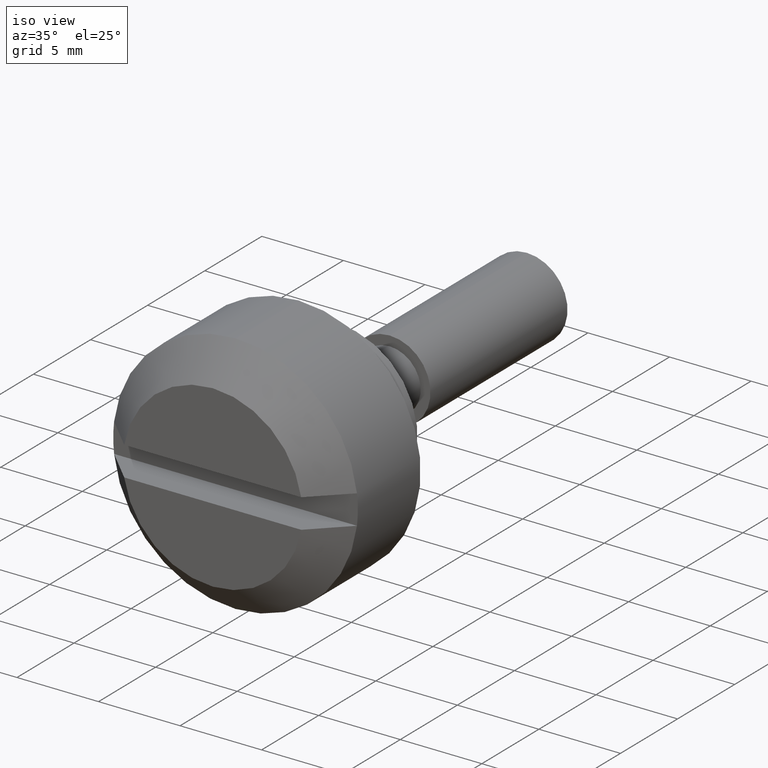
[diagram: clean part render]
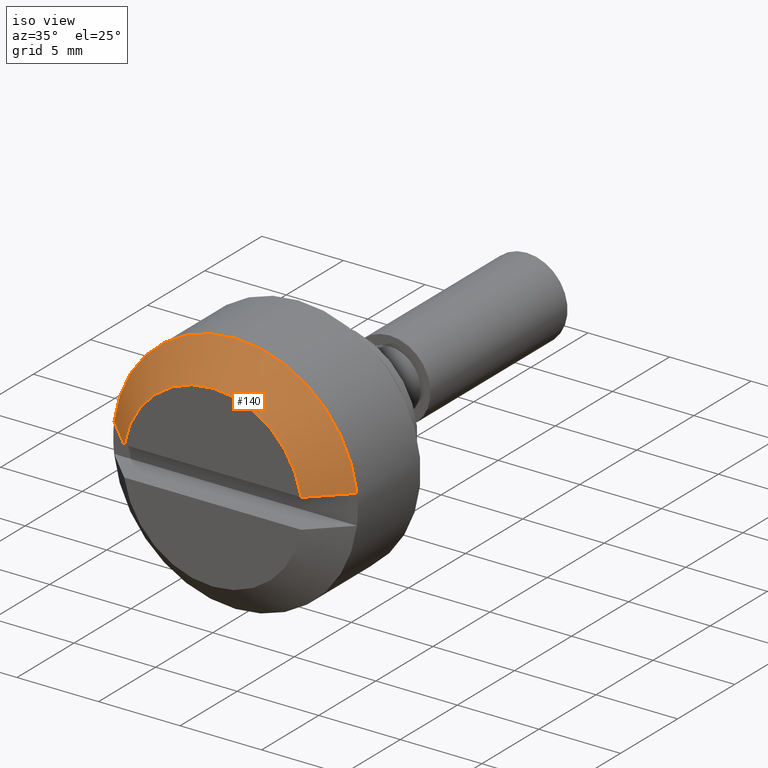
[diagram: same view with one face highlighted and labeled with its STEP entity id]
A machine part, iso view. The second image highlights one B-rep face of the part: STEP entity #140.
In plain terms, the highlighted face is a freeform B-spline surface patch.
Its self-contained STEP definition (entity closure, byte-faithful):
#140=ADVANCED_FACE('',(#440),#439,.T.);
#439=( BOUNDED_SURFACE() B_SPLINE_SURFACE( 2,1,((#730,#731),(#732,#733),(#734,#735),(#736,#737),(#738,#739)), .UNSPECIFIED.,.F.,.F.,.F.) B_SPLINE_SURFACE_WITH_KNOTS((3,2,3),(2,2),(0.00000000000E+00,5.00000000000E-01,1.00000000000E+00),(0.00000000000E+00,1.00000000000E+00), .UNSPECIFIED. ) GEOMETRIC_REPRESENTATION_ITEM() RATIONAL_B_SPLINE_SURFACE(((1.00000000000E+00,1.00000000000E+00),(7.48305015444E-01,7.48305015444E-01),(1.00000000000E+00,1.00000000000E+00),(7.48305015444E-01,7.48305015444E-01),(1.00000000000E+00,1.00000000000E+00))) REPRESENTATION_ITEM('') SURFACE() );
#440=FACE_OUTER_BOUND('',#740,.T.);
#730=CARTESIAN_POINT('',(-1.00004377704E+01,5.45977515462E+00,6.59499867979E-01));
#731=CARTESIAN_POINT('',(-7.99936222961E+00,7.44640985888E+00,8.99470432347E-01));
#732=CARTESIAN_POINT('',(-1.00004377704E+01,4.87514402087E+00,5.49946222987E+00));
#733=CARTESIAN_POINT('',(-7.99936222961E+00,6.64905045947E+00,7.50053777075E+00));
#734=CARTESIAN_POINT('',(-1.00004377704E+01,-2.98913449548E-10,5.49946222961E+00));
#735=CARTESIAN_POINT('',(-7.99936222961E+00,-4.07678224512E-10,7.50053777039E+00));
#736=CARTESIAN_POINT('',(-1.00004377704E+01,-4.87514402146E+00,5.49946222934E+00));
#737=CARTESIAN_POINT('',(-7.99936222961E+00,-6.64905046029E+00,7.50053777003E+00));
#738=CARTESIAN_POINT('',(-1.00004377704E+01,-5.45977515469E+00,6.59499867385E-01));
#739=CARTESIAN_POINT('',(-7.99936222961E+00,-7.44640985898E+00,8.99470431538E-01));
#740=EDGE_LOOP('',(#967,#968,#969,#970,#971));
#967=ORIENTED_EDGE('',*,*,#1104,.F.);
#968=ORIENTED_EDGE('',*,*,#1105,.F.);
#969=ORIENTED_EDGE('',*,*,#1106,.F.);
#970=ORIENTED_EDGE('',*,*,#1090,.T.);
#971=ORIENTED_EDGE('',*,*,#1107,.F.);
#1090=EDGE_CURVE('',#1551,#1552,#1553,.T.);
#1104=EDGE_CURVE('',#1649,#1532,#1650,.T.);
#1105=EDGE_CURVE('',#1531,#1649,#1656,.T.);
#1106=EDGE_CURVE('',#1551,#1531,#1662,.T.);
#1107=EDGE_CURVE('',#1532,#1552,#1668,.T.);
#1531=VERTEX_POINT('',#2022);
#1532=VERTEX_POINT('',#2023);
#1551=VERTEX_POINT('',#2035);
#1552=VERTEX_POINT('',#2036);
#1553=CIRCLE('',#2040,5.50000000000E+00);
#1649=VERTEX_POINT('',#2104);
#1650=CIRCLE('',#2108,7.50000000000E+00);
#1656=CIRCLE('',#2112,7.50000000000E+00);
#1662=(BOUNDED_CURVE() B_SPLINE_CURVE(3,(#2113,#2114,#2115,#2116),.UNSPECIFIED.,.F.,.F.) B_SPLINE_CURVE_WITH_KNOTS((4,4),(2.99411617818E-02,3.27847412295E-02),.UNSPECIFIED.) CURVE() GEOMETRIC_REPRESENTATION_ITEM() RATIONAL_B_SPLINE_CURVE((1.00000000000E+00,1.00000000000E+00,1.00000000000E+00,1.00000000000E+00)) REPRESENTATION_ITEM('') );
#1668=(BOUNDED_CURVE() B_SPLINE_CURVE(3,(#2117,#2118,#2119,#2120),.UNSPECIFIED.,.F.,.F.) B_SPLINE_CURVE_WITH_KNOTS((4,4),(1.27287149362E-02,1.55712763781E-02),.UNSPECIFIED.) CURVE() GEOMETRIC_REPRESENTATION_ITEM() RATIONAL_B_SPLINE_CURVE((1.00000000000E+00,1.00000000000E+00,1.00000000000E+00,1.00000000000E+00)) REPRESENTATION_ITEM('') );
#2022=CARTESIAN_POINT('',(-7.99990000000E+00,7.44580418759E+00,9.00000000000E-01));
#2023=CARTESIAN_POINT('',(-7.99990000000E+00,-7.44580418759E+00,9.00000000000E-01));
#2035=CARTESIAN_POINT('',(-9.99990000000E+00,5.42586398650E+00,9.00000000000E-01));
#2036=CARTESIAN_POINT('',(-9.99990000000E+00,-5.42586398650E+00,9.00000000000E-01));
#2037=CARTESIAN_POINT('',(-9.99990000000E+00,0.00000000000E+00,0.00000000000E+00));
#2038=DIRECTION('',(1.00000000000E+00,0.00000000000E+00,-0.00000000000E+00));
#2039=DIRECTION('',(0.00000000000E+00,9.86520724818E-01,1.63636363636E-01));
#2040=AXIS2_PLACEMENT_3D('',#2037,#2038,#2039);
#2104=CARTESIAN_POINT('',(-7.99990000000E+00,-3.78799782637E-10,7.50000000000E+00));
#2105=CARTESIAN_POINT('',(-7.99990000000E+00,0.00000000000E+00,0.00000000000E+00));
#2106=DIRECTION('',(1.00000000000E+00,0.00000000000E+00,-0.00000000000E+00));
#2107=DIRECTION('',(0.00000000000E+00,9.92773891679E-01,1.20000000000E-01));
#2108=AXIS2_PLACEMENT_3D('',#2105,#2106,#2107);
#2109=CARTESIAN_POINT('',(-7.99990000000E+00,0.00000000000E+00,0.00000000000E+00));
#2110=DIRECTION('',(1.00000000000E+00,0.00000000000E+00,-0.00000000000E+00));
#2111=DIRECTION('',(0.00000000000E+00,9.92773891679E-01,1.20000000000E-01));
#2112=AXIS2_PLACEMENT_3D('',#2109,#2110,#2111);
#2113=CARTESIAN_POINT('',(-9.99990000000E+00,5.42586398650E+00,9.00000000000E-01));
#2114=CARTESIAN_POINT('',(-9.33446199411E+00,6.10039417036E+00,9.00000000000E-01));
#2115=CARTESIAN_POINT('',(-8.66746487103E+00,6.77338030878E+00,9.00000000000E-01));
#2116=CARTESIAN_POINT('',(-7.99990000000E+00,7.44580418759E+00,9.00000000000E-01));
#2117=CARTESIAN_POINT('',(-7.99990000000E+00,-7.44580418759E+00,9.00000000000E-01));
#2118=CARTESIAN_POINT('',(-8.66746443278E+00,-6.77338075022E+00,9.00000000000E-01));
#2119=CARTESIAN_POINT('',(-9.33446139654E+00,-6.10039477610E+00,9.00000000000E-01));
#2120=CARTESIAN_POINT('',(-9.99990000000E+00,-5.42586398650E+00,9.00000000000E-01));